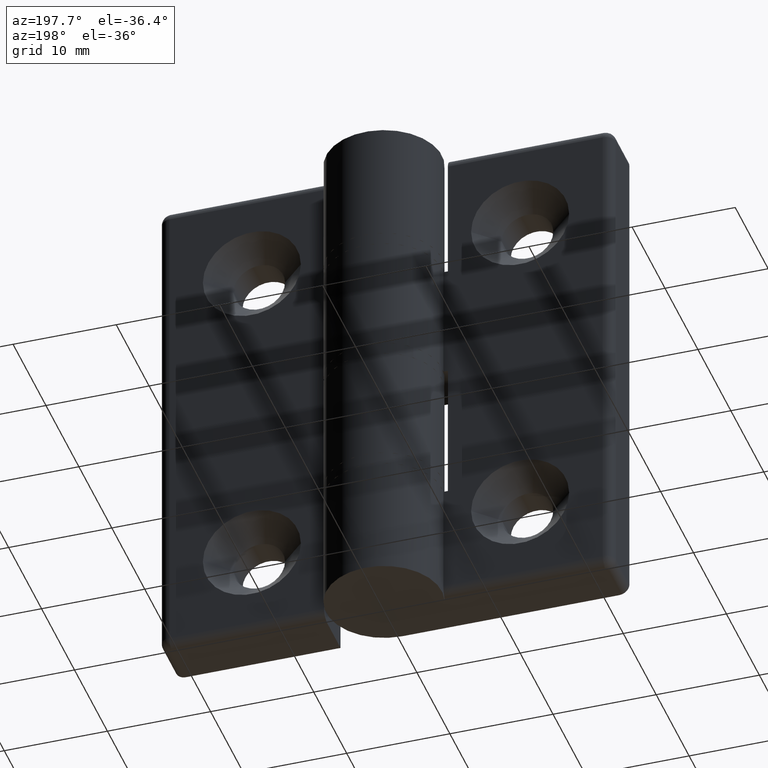
[diagram: clean part render]
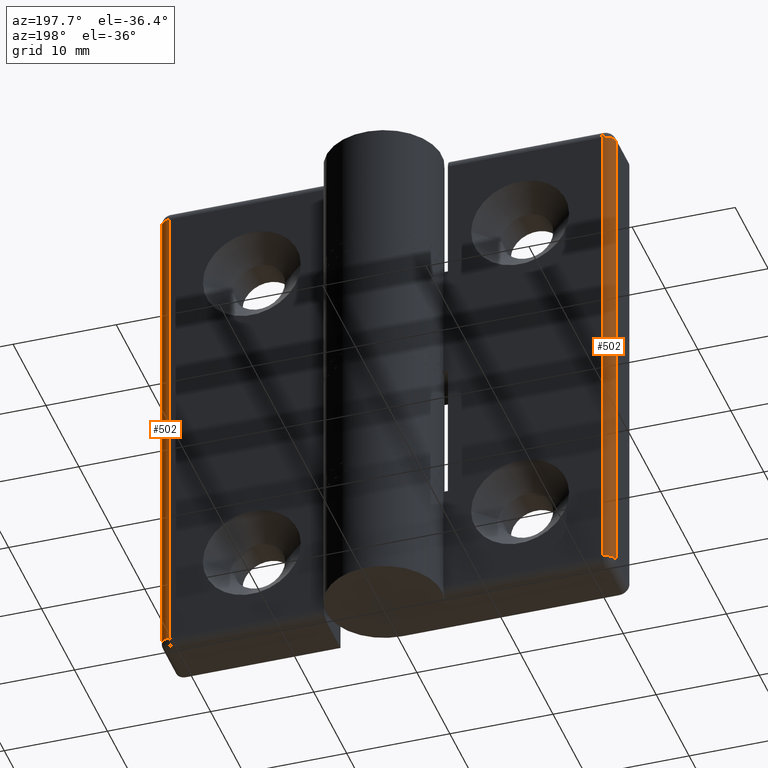
[diagram: same view with one multi-face feature highlighted, each face labeled with its STEP entity id]
A machine part, auxiliary view. The highlighted faces form ONE feature: a constant-radius fillet chain: 2 tangent blend faces with common blend radius 1 mm. The faces share edges in the B-rep.
Their STEP definitions:
[1] entity #502 (Cylinder):
#86=FACE_OUTER_BOUND('',#119,.T.);
#119=EDGE_LOOP('',(#369,#370,#371,#372));
#171=LINE('',#798,#202);
#172=LINE('',#801,#203);
#202=VECTOR('',#623,48.);
#203=VECTOR('',#626,48.);
#233=CIRCLE('',#542,0.999999999999996);
#234=CIRCLE('',#543,1.);
#262=VERTEX_POINT('',#789);
#264=VERTEX_POINT('',#795);
#265=VERTEX_POINT('',#797);
#266=VERTEX_POINT('',#799);
#308=EDGE_CURVE('',#264,#262,#233,.T.);
#309=EDGE_CURVE('',#262,#265,#171,.T.);
#310=EDGE_CURVE('',#265,#266,#234,.T.);
#311=EDGE_CURVE('',#266,#264,#172,.T.);
#369=ORIENTED_EDGE('',*,*,#308,.T.);
#370=ORIENTED_EDGE('',*,*,#309,.T.);
#371=ORIENTED_EDGE('',*,*,#310,.T.);
#372=ORIENTED_EDGE('',*,*,#311,.T.);
#488=CYLINDRICAL_SURFACE('',#541,1.);
#502=ADVANCED_FACE('',(#86),#488,.T.);
#541=AXIS2_PLACEMENT_3D('',#794,#619,#620);
#542=AXIS2_PLACEMENT_3D('',#796,#621,#622);
#543=AXIS2_PLACEMENT_3D('',#800,#624,#625);
#619=DIRECTION('center_axis',(0.,0.,-1.));
#620=DIRECTION('ref_axis',(-0.707106781186546,0.707106781186549,0.));
#621=DIRECTION('center_axis',(0.,0.,-1.));
#622=DIRECTION('ref_axis',(-1.,0.,0.));
#623=DIRECTION('',(0.,0.,-1.));
#624=DIRECTION('center_axis',(0.,0.,1.));
#625=DIRECTION('ref_axis',(0.,1.,0.));
#626=DIRECTION('',(0.,0.,1.));
#789=CARTESIAN_POINT('',(-21.,5.,-1.));
#794=CARTESIAN_POINT('Origin',(-21.,4.,0.));
#795=CARTESIAN_POINT('',(-22.,4.,-1.));
#796=CARTESIAN_POINT('Origin',(-21.,4.,-1.));
#797=CARTESIAN_POINT('',(-21.,5.,-49.));
#798=CARTESIAN_POINT('',(-21.,5.,0.));
#799=CARTESIAN_POINT('',(-22.,4.,-49.));
#800=CARTESIAN_POINT('Origin',(-21.,4.,-49.));
#801=CARTESIAN_POINT('',(-22.,4.,0.));
[2] entity #502 (Cylinder):
#86=FACE_OUTER_BOUND('',#119,.T.);
#119=EDGE_LOOP('',(#369,#370,#371,#372));
#171=LINE('',#798,#202);
#172=LINE('',#801,#203);
#202=VECTOR('',#623,48.);
#203=VECTOR('',#626,48.);
#233=CIRCLE('',#542,0.999999999999996);
#234=CIRCLE('',#543,1.);
#262=VERTEX_POINT('',#789);
#264=VERTEX_POINT('',#795);
#265=VERTEX_POINT('',#797);
#266=VERTEX_POINT('',#799);
#308=EDGE_CURVE('',#264,#262,#233,.T.);
#309=EDGE_CURVE('',#262,#265,#171,.T.);
#310=EDGE_CURVE('',#265,#266,#234,.T.);
#311=EDGE_CURVE('',#266,#264,#172,.T.);
#369=ORIENTED_EDGE('',*,*,#308,.T.);
#370=ORIENTED_EDGE('',*,*,#309,.T.);
#371=ORIENTED_EDGE('',*,*,#310,.T.);
#372=ORIENTED_EDGE('',*,*,#311,.T.);
#488=CYLINDRICAL_SURFACE('',#541,1.);
#502=ADVANCED_FACE('',(#86),#488,.T.);
#541=AXIS2_PLACEMENT_3D('',#794,#619,#620);
#542=AXIS2_PLACEMENT_3D('',#796,#621,#622);
#543=AXIS2_PLACEMENT_3D('',#800,#624,#625);
#619=DIRECTION('center_axis',(0.,0.,-1.));
#620=DIRECTION('ref_axis',(-0.707106781186546,0.707106781186549,0.));
#621=DIRECTION('center_axis',(0.,0.,-1.));
#622=DIRECTION('ref_axis',(-1.,0.,0.));
#623=DIRECTION('',(0.,0.,-1.));
#624=DIRECTION('center_axis',(0.,0.,1.));
#625=DIRECTION('ref_axis',(0.,1.,0.));
#626=DIRECTION('',(0.,0.,1.));
#789=CARTESIAN_POINT('',(-21.,5.,-1.));
#794=CARTESIAN_POINT('Origin',(-21.,4.,0.));
#795=CARTESIAN_POINT('',(-22.,4.,-1.));
#796=CARTESIAN_POINT('Origin',(-21.,4.,-1.));
#797=CARTESIAN_POINT('',(-21.,5.,-49.));
#798=CARTESIAN_POINT('',(-21.,5.,0.));
#799=CARTESIAN_POINT('',(-22.,4.,-49.));
#800=CARTESIAN_POINT('Origin',(-21.,4.,-49.));
#801=CARTESIAN_POINT('',(-22.,4.,0.));